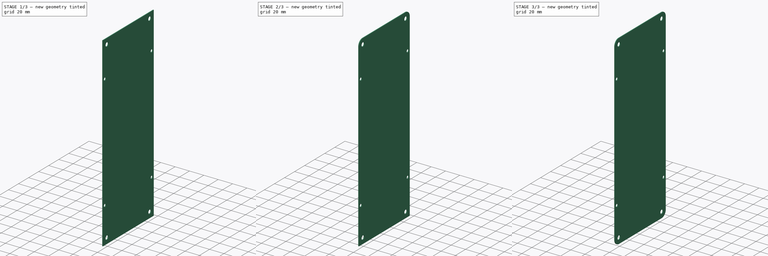
[diagram: build sequence overview — one tinted view per stage of 3, left to right]
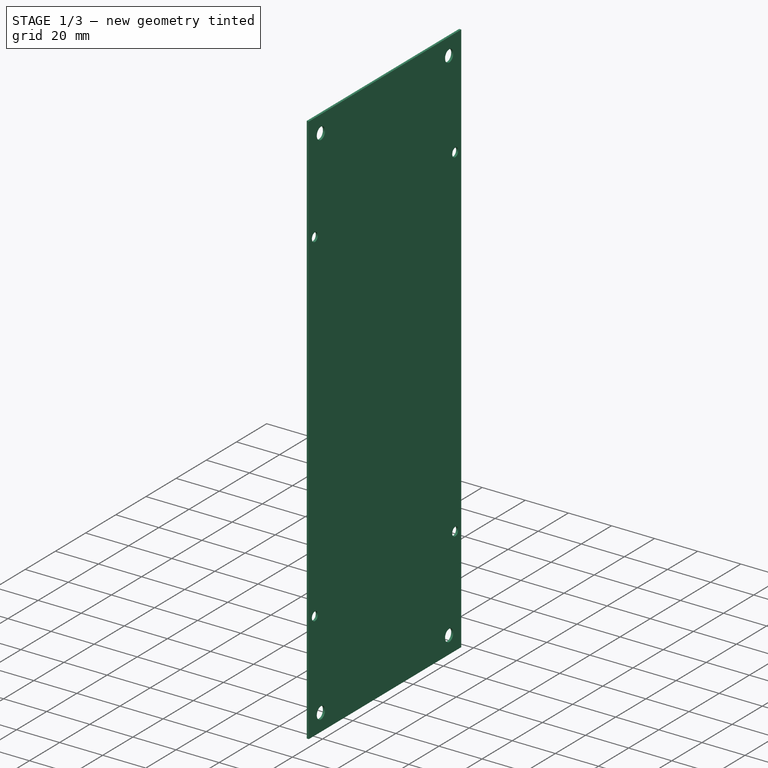
[diagram: stage 1 of 3 — iso view after this stage's code; geometry added in this stage tinted green]
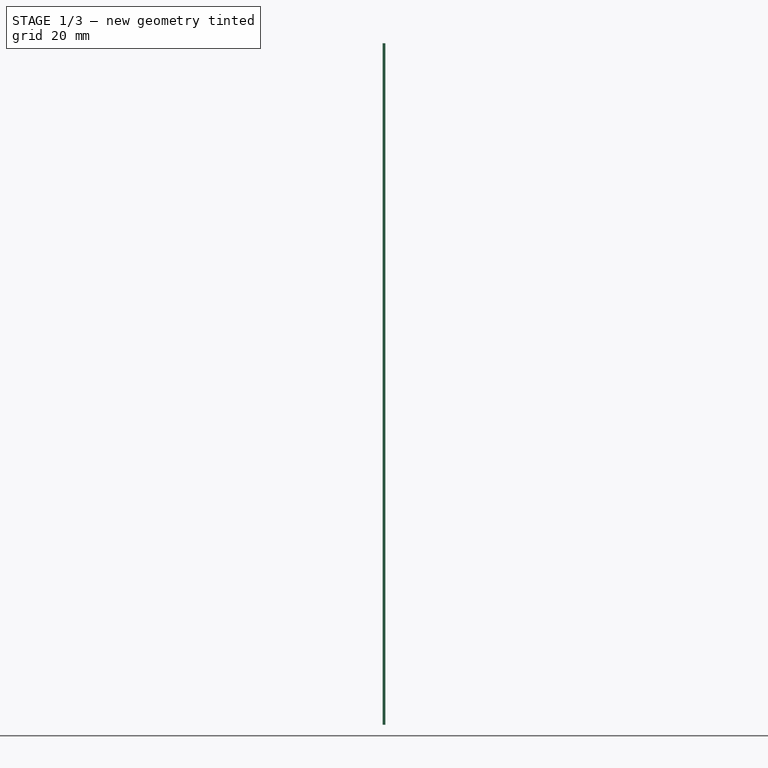
[diagram: stage 1 of 3 — front view after this stage's code; geometry added in this stage tinted green]
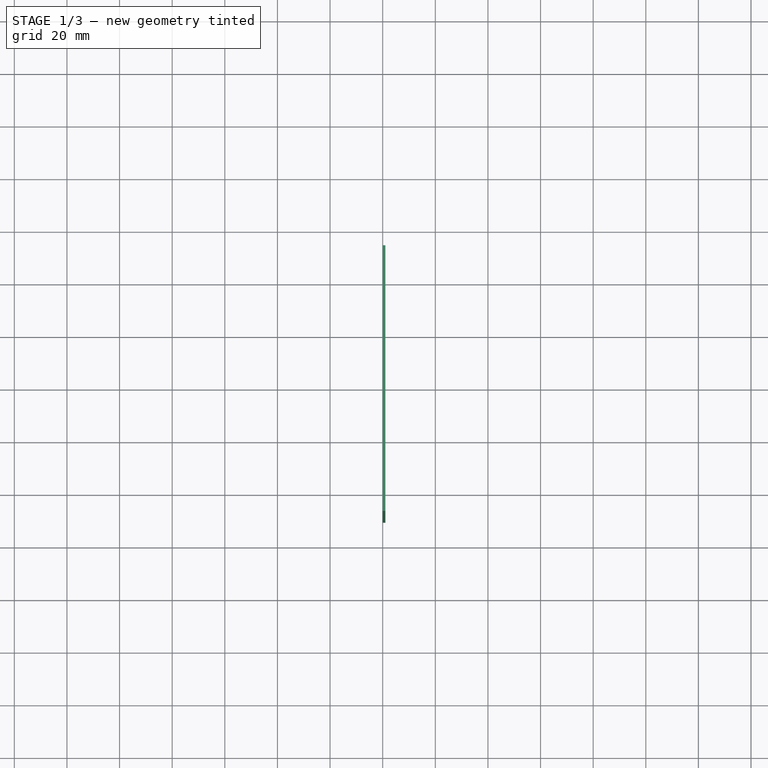
[diagram: stage 1 of 3 — top view after this stage's code; geometry added in this stage tinted green]
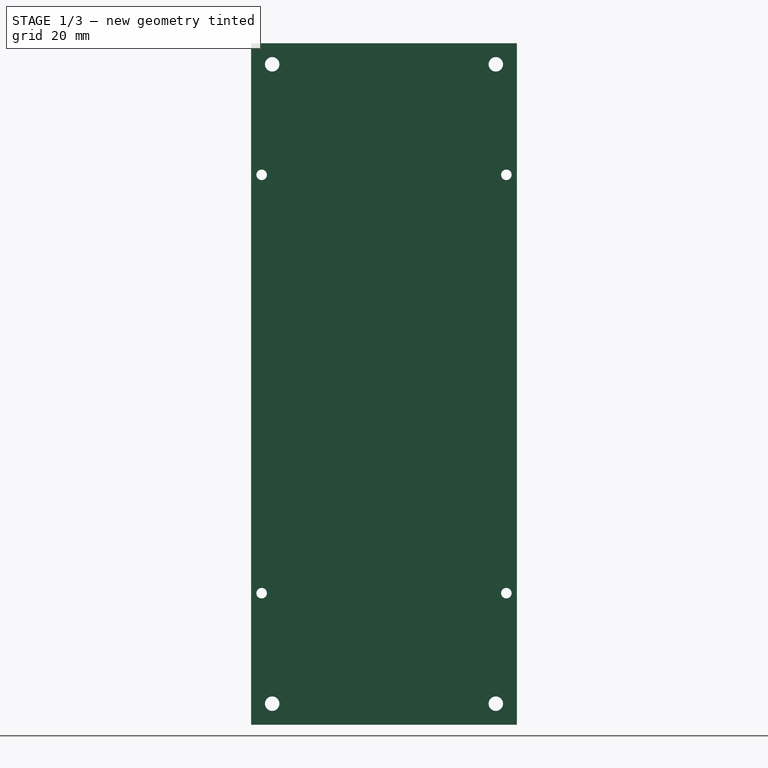
[diagram: stage 1 of 3 — right view after this stage's code; geometry added in this stage tinted green]
FCSTD DOCUMENT  (FreeCAD 0.19R22960 (Git))
Label: led_panel
License: All rights reserved
LicenseURL: http://en.wikipedia.org/wiki/All_rights_reserved
objects: PartDesign::Fillet×4, App::DocumentObjectGroup×2, PartDesign::CoordinateSystem×2, Sketcher::SketchObject×2, App::FeaturePython×1, PartDesign::Pad×1, PartDesign::Pocket×1, PartDesign::Body×1, App::Part×1
note: 17 computed .brp shape members not serialized (recipe doc carries the construction recipe); baked Part::Feature solids carry a one-line shape summary decoded from their .brp

FEATURE [App::DocumentObjectGroup] Parts
FEATURE [PartDesign::CoordinateSystem] LCS_Origin
  AttacherType = Attacher::AttachEngine3D
  MapMode = 2
  Support = -> [X_Axis]
FEATURE [App::DocumentObjectGroup] Constraints
FEATURE [App::FeaturePython] Variables  # WARN: FeaturePython — macro-defined, semantics opaque (R4)
FEATURE [Sketcher::SketchObject] Sketch
  MapMode = 5
  Placement = pos=(0,0,0) rot=(0.57735,0.57735,0.57735;2.0944rad)
  Support = -> [YZ_Plane001]
  sketch-geometry (4):
    g0: LineSegment StartX=-50.5 StartY=129.5 StartZ=0 EndX=50.5 EndY=129.5 EndZ=0
    g1: LineSegment StartX=50.5 StartY=129.5 StartZ=0 EndX=50.5 EndY=-129.5 EndZ=0
    g2: LineSegment StartX=50.5 StartY=-129.5 StartZ=0 EndX=-50.5 EndY=-129.5 EndZ=0
    g3: LineSegment StartX=-50.5 StartY=-129.5 StartZ=0 EndX=-50.5 EndY=129.5 EndZ=0
  constraints (10):
    c: Coincident(g0,g1)
    c: Coincident(g1,g2)
    c: Coincident(g2,g3)
    c: Coincident(g3,g0)
    c: Horizontal(g2)
    c: Vertical(g3)
    c: DistanceX(g2,g2) = 101
    c: DistanceY(g1,g1) = 259
    c: Symmetric(g0,g0,g-2)
    c: Symmetric(g0,g1,g-1)
FEATURE [PartDesign::Pad] Pad
  Direction = (1,1,1)
  Length = 1
  Length2 = 100
  Placement = pos=(0,0,0) rot=(0.57735,0.57735,0.57735;2.0944rad)
  Profile = -> Sketch
  Type = 0
FEATURE [Sketcher::SketchObject] Sketch001
  ExternalGeometry = -> [Pad]
  MapMode = 5
  Placement = pos=(1,-2e-16,2e-16) rot=(0.57735,0.57735,0.57735;2.0944rad)
  Support = -> [Pad]
  sketch-geometry (24):
    g0: Circle CenterX=42.5 CenterY=121.5 CenterZ=0 NormalX=0 NormalY=0 NormalZ=1 AngleXU=0 Radius=2.75
    g1: Circle CenterX=-42.5 CenterY=121.5 CenterZ=0 NormalX=0 NormalY=0 NormalZ=1 AngleXU=0 Radius=2.75
    g2: Circle CenterX=-42.5 CenterY=-121.5 CenterZ=0 NormalX=0 NormalY=0 NormalZ=1 AngleXU=0 Radius=2.75
    g3: Circle CenterX=42.5 CenterY=-121.5 CenterZ=0 NormalX=0 NormalY=0 NormalZ=1 AngleXU=0 Radius=2.75
    g4: LineSegment [constr] StartX=42.5 StartY=-121.5 StartZ=0 EndX=42.5 EndY=-129.5 EndZ=0
    g5: LineSegment [constr] StartX=42.5 StartY=-121.5 StartZ=0 EndX=50.5 EndY=-121.5 EndZ=0
    g6: LineSegment [constr] StartX=-42.5 StartY=-121.5 StartZ=0 EndX=-42.5 EndY=-129.5 EndZ=0
    g7: LineSegment [constr] StartX=-42.5 StartY=-121.5 StartZ=0 EndX=-50.5 EndY=-121.5 EndZ=0
    g8: LineSegment [constr] StartX=-42.5 StartY=121.5 StartZ=0 EndX=-42.5 EndY=129.5 EndZ=0
    g9: LineSegment [constr] StartX=-42.5 StartY=121.5 StartZ=0 EndX=-50.5 EndY=121.5 EndZ=0
    g10: LineSegment [constr] StartX=42.5 StartY=121.5 StartZ=0 EndX=42.5 EndY=129.5 EndZ=0
    g11: LineSegment [constr] StartX=42.5 StartY=121.5 StartZ=0 EndX=50.5 EndY=121.5 EndZ=0
    g12: Circle CenterX=-46.5 CenterY=79.5 CenterZ=0 NormalX=0 NormalY=0 NormalZ=1 AngleXU=0 Radius=2
    g13: Circle CenterX=46.5 CenterY=79.5 CenterZ=0 NormalX=0 NormalY=0 NormalZ=1 AngleXU=0 Radius=2
    g14: Circle CenterX=-46.5 CenterY=-79.5 CenterZ=0 NormalX=0 NormalY=0 NormalZ=1 AngleXU=0 Radius=2
    g15: Circle CenterX=46.5 CenterY=-79.5 CenterZ=0 NormalX=0 NormalY=0 NormalZ=1 AngleXU=0 Radius=2
    g16: LineSegment [constr] StartX=-46.5 StartY=79.5 StartZ=0 EndX=-46.5 EndY=129.5 EndZ=0
    g17: LineSegment [constr] StartX=-46.5 StartY=79.5 StartZ=0 EndX=-50.5 EndY=79.5 EndZ=0
    g18: LineSegment [constr] StartX=46.5 StartY=79.5 StartZ=0 EndX=50.5 EndY=79.5 EndZ=0
    g19: LineSegment [constr] StartX=46.5 StartY=79.5 StartZ=0 EndX=46.5 EndY=129.5 EndZ=0
    g20: LineSegment [constr] StartX=46.5 StartY=-79.5 StartZ=0 EndX=46.5 EndY=-129.5 EndZ=0
    g21: LineSegment [constr] StartX=46.5 StartY=-79.5 StartZ=0 EndX=50.5 EndY=-79.5 EndZ=0
    g22: LineSegment [constr] StartX=-46.5 StartY=-79.5 StartZ=0 EndX=-46.5 EndY=-129.5 EndZ=0
    g23: LineSegment [constr] StartX=-46.5 StartY=-79.5 StartZ=0 EndX=-50.5 EndY=-79.5 EndZ=0
  constraints (72):
    c: Coincident(g4,g3)
    c: PointOnObject(g4,g-6)
    c: Vertical(g4)
    c: Coincident(g5,g4)
    c: PointOnObject(g5,g-4)
    c: Horizontal(g5)
    c: Coincident(g6,g2)
    c: PointOnObject(g6,g-6)
    c: Vertical(g6)
    c: Coincident(g7,g6)
    c: PointOnObject(g7,g-5)
    c: Horizontal(g7)
    c: Coincident(g8,g1)
    c: PointOnObject(g8,g-3)
    c: Vertical(g8)
    c: Coincident(g9,g8)
    c: PointOnObject(g9,g-5)
    c: Horizontal(g9)
    c: Coincident(g10,g0)
    c: PointOnObject(g10,g-3)
    c: Vertical(g10)
    c: Coincident(g11,g10)
    c: PointOnObject(g11,g-4)
    c: Horizontal(g11)
    c: Equal(g11,g10)
    c: Equal(g10,g8)
    c: Equal(g8,g9)
    c: Equal(g9,g4)
    c: Equal(g4,g5)
    c: Equal(g5,g6)
    c: Equal(g6,g7)
    c: Equal(g2,g3)
    c: Equal(g3,g1)
    c: Equal(g1,g0)
    c: Radius(g2) = 2.75
    c: DistanceX(g7,g7) = 8
    c: Coincident(g16,g12)
    c: PointOnObject(g16,g-3)
    c: Vertical(g16)
    c: Coincident(g17,g12)
    c: PointOnObject(g17,g-5)
    c: Horizontal(g17)
    c: Coincident(g18,g13)
    c: PointOnObject(g18,g-4)
    c: Horizontal(g18)
    c: Coincident(g19,g13)
    c: PointOnObject(g19,g-3)
    c: Vertical(g19)
    c: Coincident(g20,g15)
    c: PointOnObject(g20,g-6)
    c: Vertical(g20)
    c: Coincident(g21,g15)
    c: PointOnObject(g21,g-4)
    c: Horizontal(g21)
    c: Coincident(g22,g14)
    c: PointOnObject(g22,g-6)
    c: Vertical(g22)
    c: Coincident(g23,g14)
    c: PointOnObject(g23,g-5)
    c: Horizontal(g23)
    c: Equal(g16,g19)
    c: Equal(g19,g20)
    c: Equal(g20,g22)
    c: DistanceY(g19,g19) = 50
    c: Equal(g18,g17)
    c: Equal(g17,g21)
    c: Equal(g21,g23)
    c: DistanceX(g18,g18) = 4
    c: Equal(g12,g13)
    c: Equal(g13,g15)
    c: Equal(g15,g14)
    c: Radius(g13) = 2
FEATURE [PartDesign::Pocket] Pocket
  BaseFeature = -> Pad
  Length = 5
  Length2 = 100
  Placement = pos=(0,0,0) rot=(0.57735,0.57735,0.57735;2.0944rad)
  Profile = -> Sketch001
  Type = 1
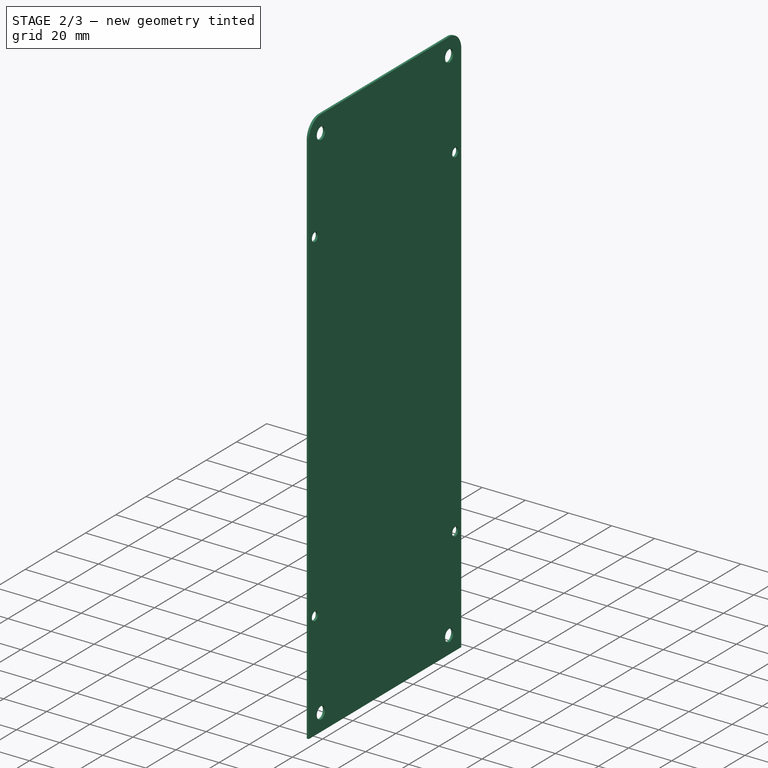
[diagram: stage 2 of 3 — iso view after this stage's code; geometry added in this stage tinted green]
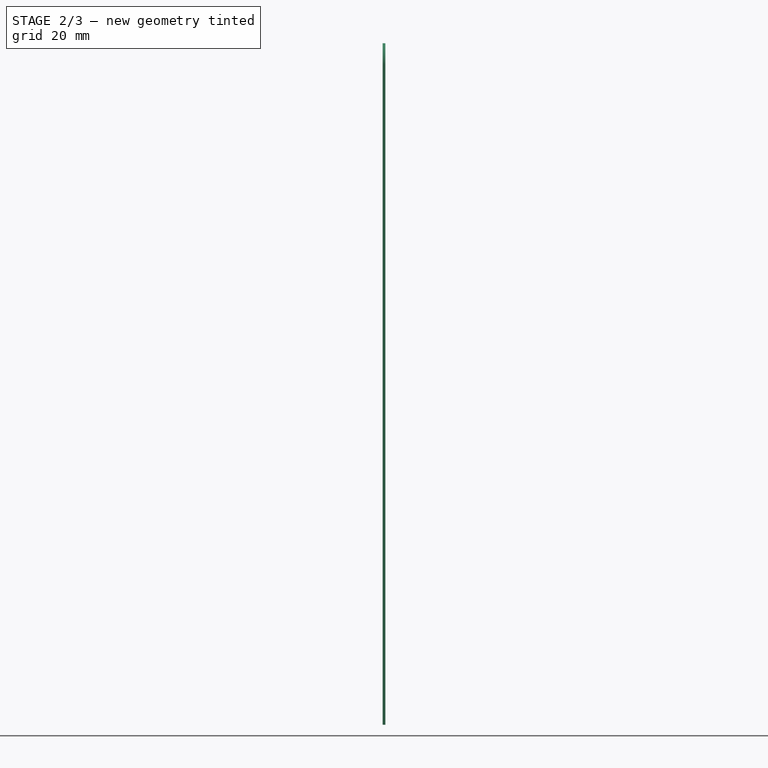
[diagram: stage 2 of 3 — front view after this stage's code; geometry added in this stage tinted green]
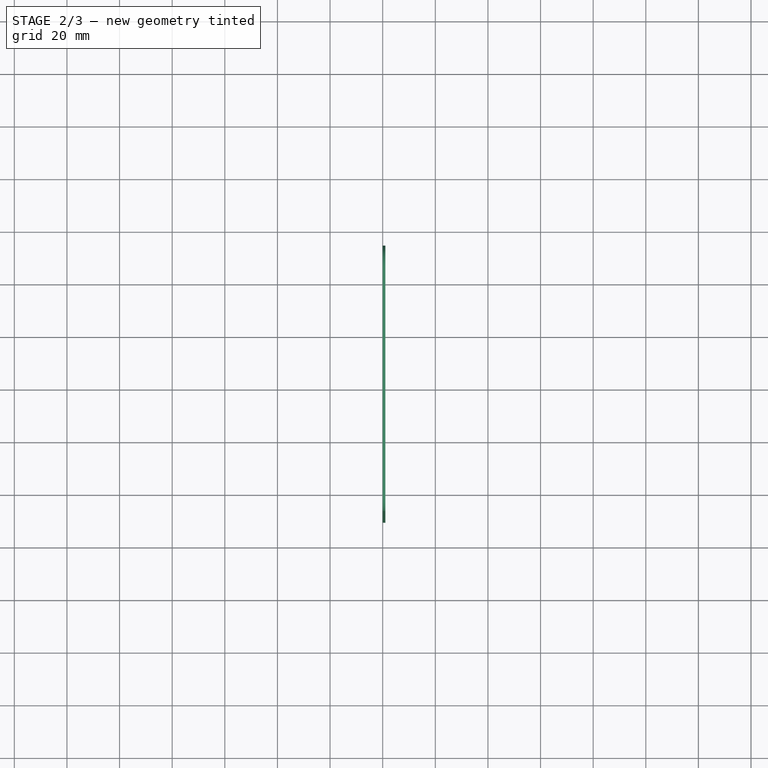
[diagram: stage 2 of 3 — top view after this stage's code; geometry added in this stage tinted green]
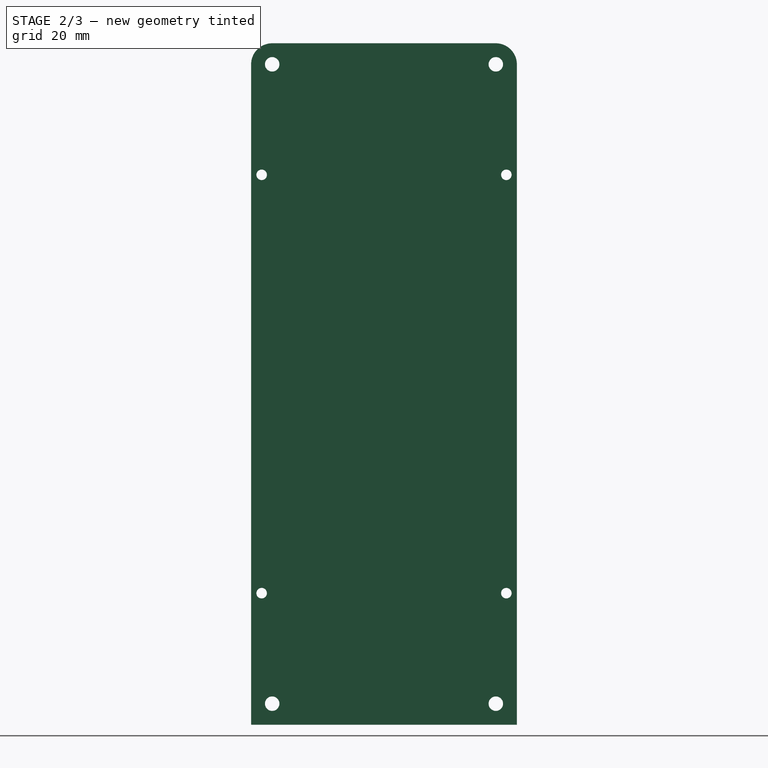
[diagram: stage 2 of 3 — right view after this stage's code; geometry added in this stage tinted green]
FEATURE [PartDesign::Fillet] Fillet
  Base = -> Pocket [Edge2]
  BaseFeature = -> Pocket
  Placement = pos=(0,0,0) rot=(0.57735,0.57735,0.57735;2.0944rad)
  Radius = 8
  SupportTransform = false
FEATURE [PartDesign::Fillet] Fillet001
  Base = -> Fillet [Edge3]
  BaseFeature = -> Fillet
  Placement = pos=(0,0,0) rot=(0.57735,0.57735,0.57735;2.0944rad)
  Radius = 8
  SupportTransform = false
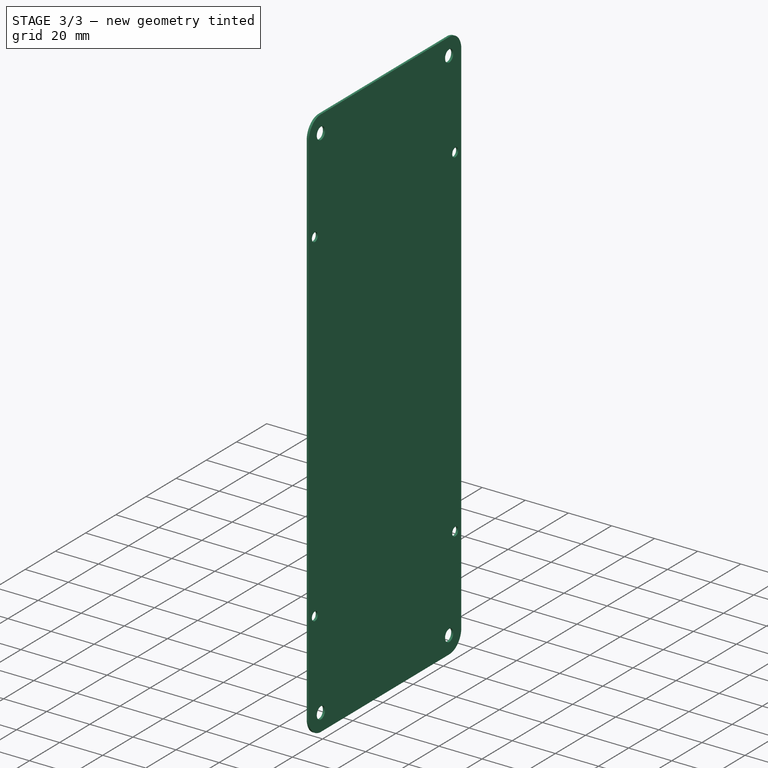
[diagram: stage 3 of 3 — iso view after this stage's code; geometry added in this stage tinted green]
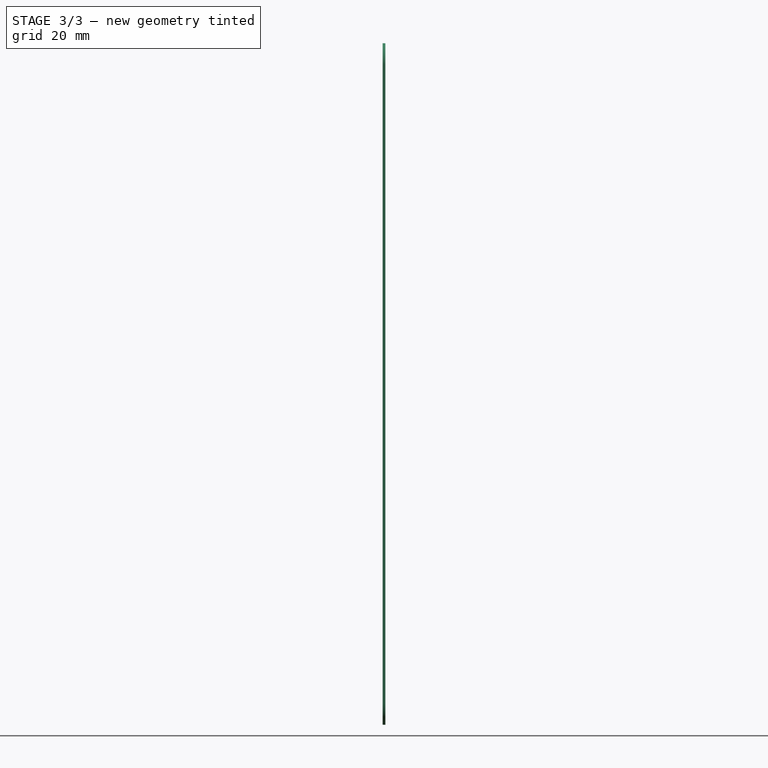
[diagram: stage 3 of 3 — front view after this stage's code; geometry added in this stage tinted green]
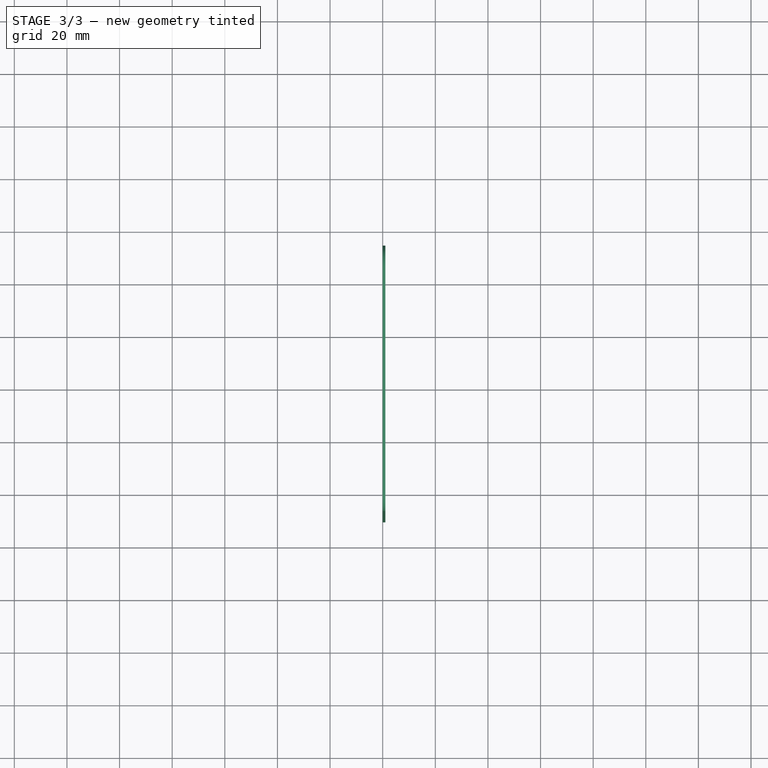
[diagram: stage 3 of 3 — top view after this stage's code; geometry added in this stage tinted green]
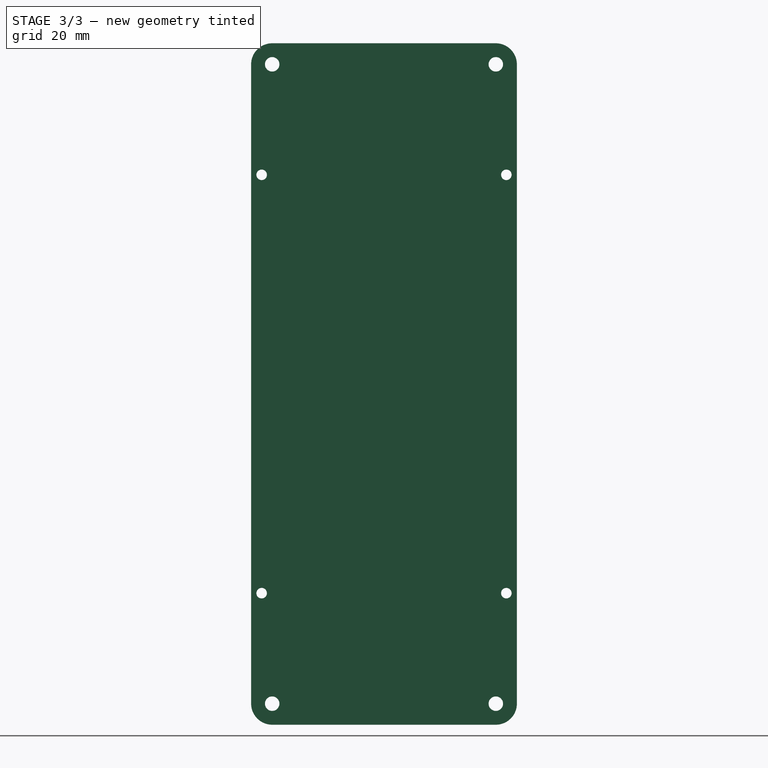
[diagram: stage 3 of 3 — right view after this stage's code; geometry added in this stage tinted green]
FEATURE [PartDesign::Fillet] Fillet002
  Base = -> Fillet001 [Edge34]
  BaseFeature = -> Fillet001
  Placement = pos=(0,0,0) rot=(0.57735,0.57735,0.57735;2.0944rad)
  Radius = 8
  SupportTransform = false
FEATURE [PartDesign::Fillet] Fillet003
  Base = -> Fillet002 [Edge23]
  BaseFeature = -> Fillet002
  Placement = pos=(0,0,0) rot=(0.57735,0.57735,0.57735;2.0944rad)
  Radius = 8
  SupportTransform = false
FEATURE [PartDesign::Body] Body
  Group = -> [Sketch,Pad,Sketch001,Pocket,Fillet,Fillet001,Fillet002,Fillet003]
  Origin = -> Origin001
  Tip = -> Fillet003
FEATURE [PartDesign::CoordinateSystem] MH
  AttacherType = Attacher::AttachEngine3D
  MapMode = 11
  Placement = pos=(1,42.5,-121.5) rot=(0.707107,0,0.707107;3.14159rad)
  Support = -> [Fillet003]
FEATURE [App::Part] Model
  Configuration = 0
  Group = -> [LCS_Origin,Constraints,Variables,MH,Body]
  Origin = -> Origin
  Type = Assembly4 Model
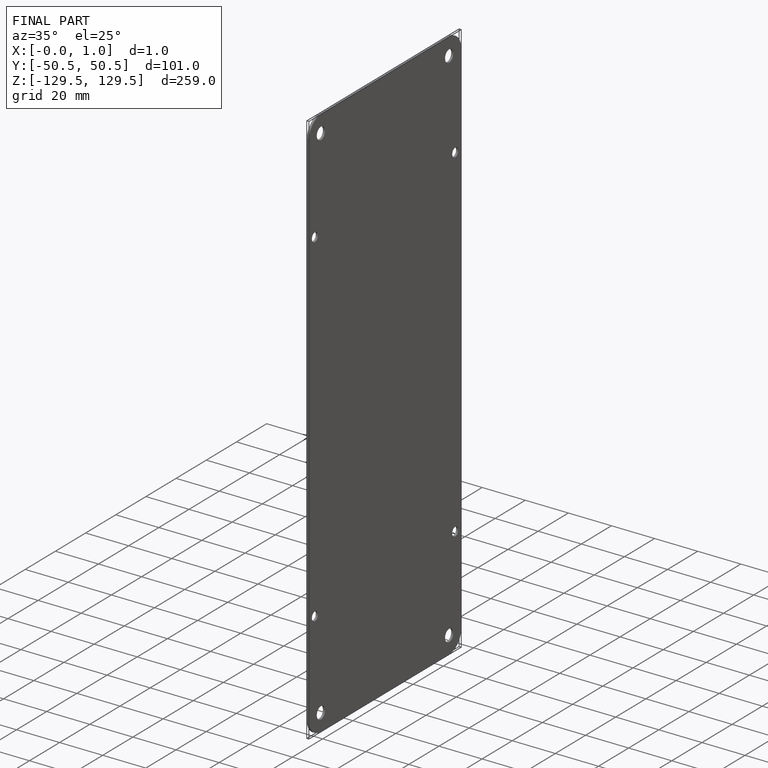
[diagram: finished part — iso view with bounding-box wireframe]
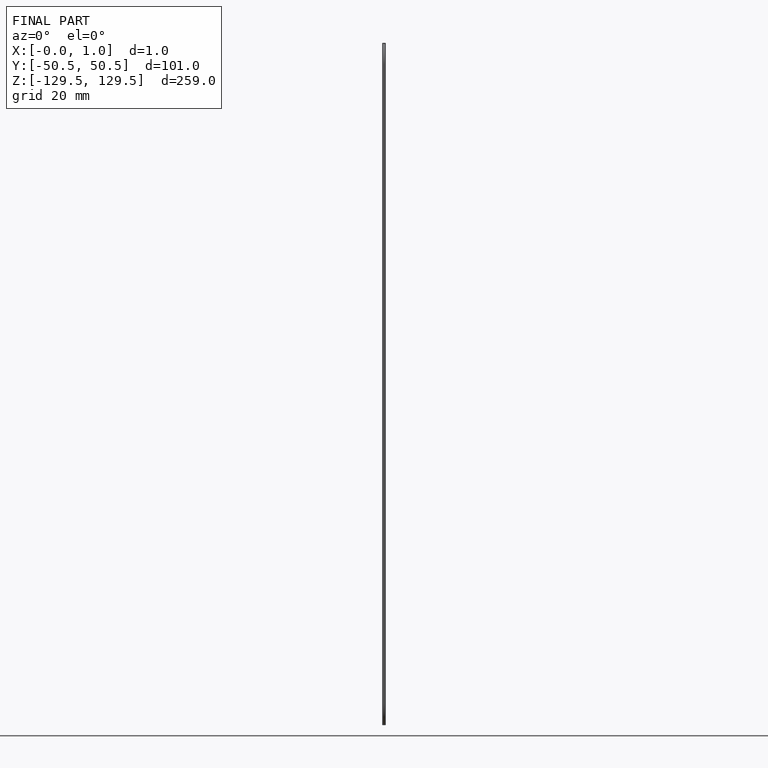
[diagram: finished part — front view with bounding-box wireframe]
